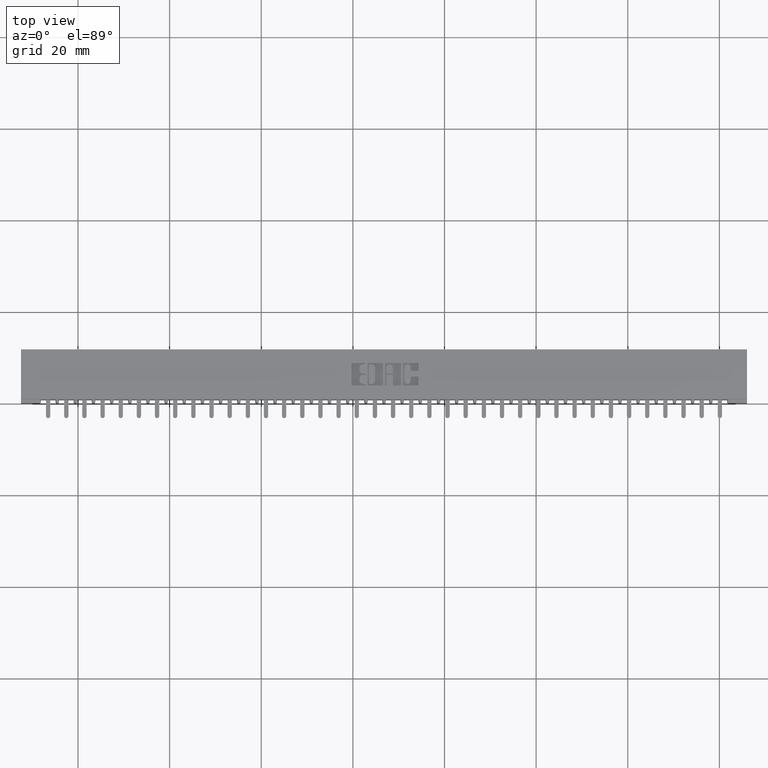
[diagram: clean part render]
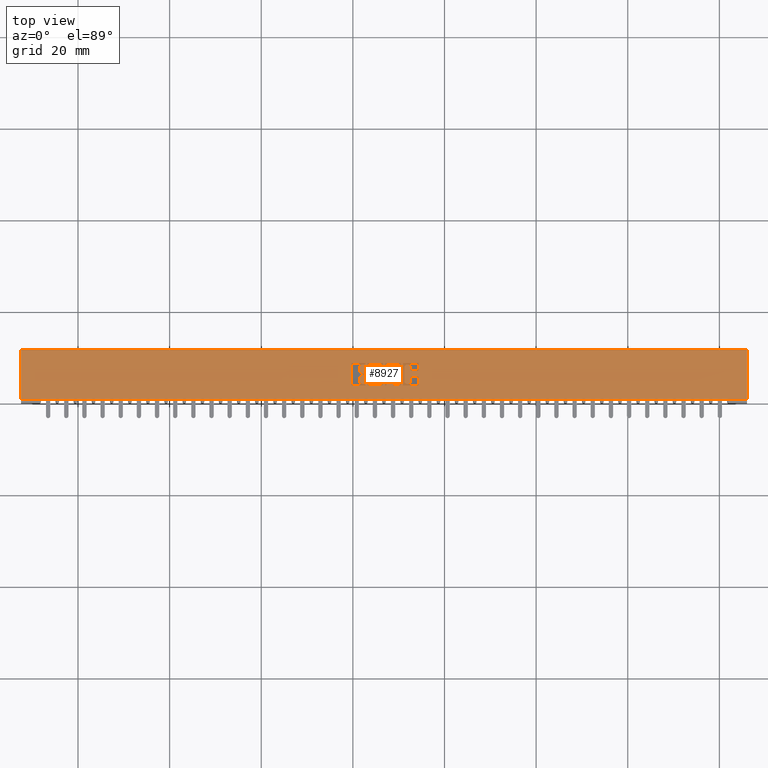
[diagram: same view with one face highlighted and labeled with its STEP entity id]
A machine part, top view. The second image highlights one B-rep face of the part: STEP entity #8927.
In plain terms, the highlighted planar face has unit normal (0, 0, -1).
Its self-contained STEP definition (entity closure, byte-faithful):
#13 = CARTESIAN_POINT ( 'NONE',  ( 3.654293827176977100, 0.2842718973050484800, 0.0000000000000000000 ) ) ;
#43 = AXIS2_PLACEMENT_3D ( 'NONE', #25607, #9057, #28361 ) ;
#83 = CARTESIAN_POINT ( 'NONE',  ( 0.2979999999999999900, 0.4600000000000000200, 0.0000000000000000000 ) ) ;
#95 = CARTESIAN_POINT ( 'NONE',  ( 3.439330649713646400, 0.0000000000000000000, 0.0000000000000000000 ) ) ;
#128 = CARTESIAN_POINT ( 'NONE',  ( -0.0000000000000000000, 0.2386290308573601200, 0.0000000000000000000 ) ) ;
#152 = CIRCLE ( 'NONE', #17811, 0.009815670203787768200 ) ;
#203 = ORIENTED_EDGE ( 'NONE', *, *, #29122, .F. ) ;
#246 = CARTESIAN_POINT ( 'NONE',  ( 3.136026440416114900, 0.1571589681657932500, 0.0000000000000000000 ) ) ;
#319 = ORIENTED_EDGE ( 'NONE', *, *, #11803, .F. ) ;
#320 = CARTESIAN_POINT ( 'NONE',  ( 3.644478156973165500, 0.3036578454992631700, 0.0000000000000000000 ) ) ;
#366 = VERTEX_POINT ( 'NONE', #5428 ) ;
#513 = EDGE_CURVE ( 'NONE', #27958, #25389, #24741, .T. ) ;
#530 = ORIENTED_EDGE ( 'NONE', *, *, #26776, .F. ) ;
#805 = VERTEX_POINT ( 'NONE', #15135 ) ;
#1259 = ORIENTED_EDGE ( 'NONE', *, *, #32869, .F. ) ;
#1565 = CARTESIAN_POINT ( 'NONE',  ( 3.398595618367861200, 0.1473432979619864700, 0.0000000000000000000 ) ) ;
#1583 = CARTESIAN_POINT ( 'NONE',  ( 3.654293827176966500, 0.2170345564089728700, 0.0000000000000000000 ) ) ;
#1587 = VECTOR ( 'NONE', #6218, 39.37007874015748100 ) ;
#1596 = EDGE_CURVE ( 'NONE', #7501, #7664, #32261, .T. ) ;
#1645 = CARTESIAN_POINT ( 'NONE',  ( 3.435404381632126900, 0.3436567020380099100, 0.0000000000000000000 ) ) ;
#1646 = CARTESIAN_POINT ( 'NONE',  ( 3.703862961706166200, 0.2744562271012367900, 0.0000000000000000000 ) ) ;
#1719 = VERTEX_POINT ( 'NONE', #2661 ) ;
#1734 = DIRECTION ( 'NONE',  ( -1.000000000000000000, -3.427012734660361200E-014, 0.0000000000000000000 ) ) ;
#1762 = CIRCLE ( 'NONE', #7080, 0.006870969142648706400 ) ;
#1779 = VERTEX_POINT ( 'NONE', #83 ) ;
#1850 = DIRECTION ( 'NONE',  ( -0.0000000000000000000, 0.0000000000000000000, 1.000000000000000000 ) ) ;
#1905 = DIRECTION ( 'NONE',  ( -0.0000000000000000000, 0.0000000000000000000, 1.000000000000000000 ) ) ;
#1944 = EDGE_CURVE ( 'NONE', #11505, #13034, #13874, .T. ) ;
#2002 = DIRECTION ( 'NONE',  ( 1.000000000000000000, 0.0000000000000000000, 0.0000000000000000000 ) ) ;
#2067 = CARTESIAN_POINT ( 'NONE',  ( 3.703862961706131600, 0.3338410318342142600, 0.0000000000000000000 ) ) ;
#2072 = VERTEX_POINT ( 'NONE', #14836 ) ;
#2093 = LINE ( 'NONE', #6021, #9536 ) ;
#2117 = CIRCLE ( 'NONE', #28331, 0.009815670203803066700 ) ;
#2128 = CARTESIAN_POINT ( 'NONE',  ( -0.0000000000000000000, 0.3436567020380099100, 0.0000000000000000000 ) ) ;
#2235 = ORIENTED_EDGE ( 'NONE', *, *, #21520, .T. ) ;
#2246 = CARTESIAN_POINT ( 'NONE',  ( 3.591964321382818100, 0.1873421540424563000, 0.0000000000000000000 ) ) ;
#2349 = CARTESIAN_POINT ( 'NONE',  ( 3.408411288571668900, 0.1571589681657932500, 0.0000000000000000000 ) ) ;
#2388 = EDGE_CURVE ( 'NONE', #9594, #26772, #19071, .T. ) ;
#2414 = EDGE_LOOP ( 'NONE', ( #17036, #3537, #33118, #34839, #15300, #19179, #10000, #30187, #7757, #29756, #14784, #21328, #24358, #27261, #530, #16114, #27822, #23382, #34327, #17779 ) ) ;
#2440 = LINE ( 'NONE', #29941, #9015 ) ;
#2451 = CIRCLE ( 'NONE', #23103, 0.009815670203795964800 ) ;
#2471 = CIRCLE ( 'NONE', #3011, 0.009815670203840221000 ) ;
#2472 = LINE ( 'NONE', #17260, #1587 ) ;
#2572 = CARTESIAN_POINT ( 'NONE',  ( -0.0000000000000000000, 0.3299147637527390400, 0.0000000000000000000 ) ) ;
#2625 = LINE ( 'NONE', #10867, #31134 ) ;
#2636 = VECTOR ( 'NONE', #11408, 39.37007874015748100 ) ;
#2642 = LINE ( 'NONE', #31042, #24795 ) ;
#2661 = CARTESIAN_POINT ( 'NONE',  ( 3.425588711428330300, 0.3338410318342134300, 0.0000000000000000000 ) ) ;
#2690 = VERTEX_POINT ( 'NONE', #27234 ) ;
#2713 = ORIENTED_EDGE ( 'NONE', *, *, #31708, .T. ) ;
#2756 = ORIENTED_EDGE ( 'NONE', *, *, #25009, .F. ) ;
#2797 = DIRECTION ( 'NONE',  ( 1.000000000000000000, 0.0000000000000000000, 0.0000000000000000000 ) ) ;
#2842 = DIRECTION ( 'NONE',  ( 1.000000000000000000, 0.0000000000000000000, 0.0000000000000000000 ) ) ;
#2891 = AXIS2_PLACEMENT_3D ( 'NONE', #31755, #15398, #34413 ) ;
#3011 = AXIS2_PLACEMENT_3D ( 'NONE', #2067, #7569, #17132 ) ;
#3021 = CIRCLE ( 'NONE', #13983, 0.03141014465218151100 ) ;
#3042 = VERTEX_POINT ( 'NONE', #27862 ) ;
#3085 = FACE_BOUND ( 'NONE', #2414, .T. ) ;
#3140 = VECTOR ( 'NONE', #7038, 39.37007874015748100 ) ;
#3374 = CARTESIAN_POINT ( 'NONE',  ( 3.145842110619937700, 0.3338410318342134300, 0.0000000000000000000 ) ) ;
#3402 = VECTOR ( 'NONE', #22274, 39.37007874015748100 ) ;
#3537 = ORIENTED_EDGE ( 'NONE', *, *, #27251, .F. ) ;
#3575 = CARTESIAN_POINT ( 'NONE',  ( 3.435404381632126900, 0.3338410318342134300, 0.0000000000000000000 ) ) ;
#3624 = AXIS2_PLACEMENT_3D ( 'NONE', #8265, #27599, #11088 ) ;
#3649 = VERTEX_POINT ( 'NONE', #33911 ) ;
#3668 = LINE ( 'NONE', #34863, #24075 ) ;
#3693 = CARTESIAN_POINT ( 'NONE',  ( 3.257004575677973100, 0.2455000000000236400, 0.0000000000000000000 ) ) ;
#3783 = CARTESIAN_POINT ( 'NONE',  ( 3.236637060005083600, 0.2523709691426871400, 0.0000000000000000000 ) ) ;
#3818 = DIRECTION ( 'NONE',  ( -0.0000000000000000000, 0.0000000000000000000, 1.000000000000000000 ) ) ;
#3870 = ORIENTED_EDGE ( 'NONE', *, *, #21756, .F. ) ;
#4215 = CARTESIAN_POINT ( 'NONE',  ( 3.439330649713646400, 0.1542142671046512500, 0.0000000000000000000 ) ) ;
#4389 = DIRECTION ( 'NONE',  ( 1.000000000000000000, 0.0000000000000000000, 0.0000000000000000000 ) ) ;
#4557 = CARTESIAN_POINT ( 'NONE',  ( -8.177847276074004000E-015, 0.2386290308572337800, 0.0000000000000000000 ) ) ;
#4640 = VERTEX_POINT ( 'NONE', #34008 ) ;
#4645 = ORIENTED_EDGE ( 'NONE', *, *, #29276, .T. ) ;
#4745 = ORIENTED_EDGE ( 'NONE', *, *, #9978, .F. ) ;
#4916 = DIRECTION ( 'NONE',  ( -0.0000000000000000000, 0.0000000000000000000, 1.000000000000000000 ) ) ;
#4929 = DIRECTION ( 'NONE',  ( 1.000000000000000000, 0.0000000000000000000, 0.0000000000000000000 ) ) ;
#4958 = DIRECTION ( 'NONE',  ( -1.000000000000000000, 0.0000000000000000000, -0.0000000000000000000 ) ) ;
#5000 = DIRECTION ( 'NONE',  ( 0.0000000000000000000, 1.000000000000000000, -0.0000000000000000000 ) ) ;
#5014 = CIRCLE ( 'NONE', #9520, 0.006870969142657995000 ) ;
#5146 = ORIENTED_EDGE ( 'NONE', *, *, #30194, .T. ) ;
#5153 = CARTESIAN_POINT ( 'NONE',  ( 3.257004575677999300, 0.3367857328953895400, 0.0000000000000000000 ) ) ;
#5268 = VECTOR ( 'NONE', #16933, 39.37007874015748100 ) ;
#5428 = CARTESIAN_POINT ( 'NONE',  ( 3.250133606415388100, 0.2386290308573601200, 0.0000000000000000000 ) ) ;
#5437 = VERTEX_POINT ( 'NONE', #320 ) ;
#5507 = VERTEX_POINT ( 'NONE', #12462 ) ;
#5508 = AXIS2_PLACEMENT_3D ( 'NONE', #25409, #19498, #2797 ) ;
#5525 = AXIS2_PLACEMENT_3D ( 'NONE', #10451, #29698, #13290 ) ;
#5664 = ORIENTED_EDGE ( 'NONE', *, *, #18684, .F. ) ;
#5695 = CARTESIAN_POINT ( 'NONE',  ( 3.644478156973178300, 0.1873421540424563000, 0.0000000000000000000 ) ) ;
#5738 = EDGE_CURVE ( 'NONE', #13861, #19964, #2625, .T. ) ;
#5957 = EDGE_CURVE ( 'NONE', #2690, #25633, #17861, .T. ) ;
#5961 = CARTESIAN_POINT ( 'NONE',  ( 3.236637060005124900, 0.3299147637527390400, 0.0000000000000000000 ) ) ;
#6021 = CARTESIAN_POINT ( 'NONE',  ( 3.136026440416114900, 0.0000000000000000000, 0.0000000000000000000 ) ) ;
#6063 = DIRECTION ( 'NONE',  ( -0.0000000000000000000, 0.0000000000000000000, 1.000000000000000000 ) ) ;
#6168 = VERTEX_POINT ( 'NONE', #17402 ) ;
#6192 = DIRECTION ( 'NONE',  ( 1.000000000000000000, 0.0000000000000000000, 0.0000000000000000000 ) ) ;
#6218 = DIRECTION ( 'NONE',  ( 0.0000000000000000000, -1.000000000000000000, 0.0000000000000000000 ) ) ;
#6254 = LINE ( 'NONE', #2572, #34530 ) ;
#6374 = CARTESIAN_POINT ( 'NONE',  ( 0.0000000000000000000, 0.2268502266127608600, 0.0000000000000000000 ) ) ;
#6392 = ORIENTED_EDGE ( 'NONE', *, *, #28606, .F. ) ;
#6402 = DIRECTION ( 'NONE',  ( 1.000000000000000000, 0.0000000000000000000, 0.0000000000000000000 ) ) ;
#6661 = CIRCLE ( 'NONE', #27034, 0.009815670203811809700 ) ;
#6702 = VERTEX_POINT ( 'NONE', #10717 ) ;
#6776 = CIRCLE ( 'NONE', #17336, 0.02625691779517339700 ) ;
#6854 = EDGE_CURVE ( 'NONE', #24229, #17188, #2117, .T. ) ;
#6927 = ORIENTED_EDGE ( 'NONE', *, *, #18198, .F. ) ;
#6964 = EDGE_LOOP ( 'NONE', ( #5146, #319, #19110, #3870, #15632, #35279, #29013, #34814, #33850, #2713, #2235, #18795, #8722, #26431 ) ) ;
#6994 = ORIENTED_EDGE ( 'NONE', *, *, #29228, .T. ) ;
#6995 = CARTESIAN_POINT ( 'NONE',  ( 3.591964321382818100, 0.3036578459575328700, 0.0000000000000000000 ) ) ;
#7034 = VERTEX_POINT ( 'NONE', #17583 ) ;
#7038 = DIRECTION ( 'NONE',  ( 0.0000000000000000000, 1.000000000000000000, -0.0000000000000000000 ) ) ;
#7080 = AXIS2_PLACEMENT_3D ( 'NONE', #28141, #11660, #30832 ) ;
#7108 = LINE ( 'NONE', #25100, #12829 ) ;
#7127 = EDGE_CURVE ( 'NONE', #13034, #26872, #9108, .T. ) ;
#7139 = EDGE_CURVE ( 'NONE', #13776, #1779, #22110, .T. ) ;
#7197 = CIRCLE ( 'NONE', #31676, 0.006870969142663458500 ) ;
#7228 = DIRECTION ( 'NONE',  ( -0.0000000000000000000, 0.0000000000000000000, 1.000000000000000000 ) ) ;
#7501 = VERTEX_POINT ( 'NONE', #12850 ) ;
#7569 = DIRECTION ( 'NONE',  ( -0.0000000000000000000, 0.0000000000000000000, 1.000000000000000000 ) ) ;
#7612 = CIRCLE ( 'NONE', #21364, 0.03141014465221592800 ) ;
#7656 = CARTESIAN_POINT ( 'NONE',  ( 0.2979999999999999900, 0.03100000000000000000, 0.0000000000000000000 ) ) ;
#7664 = VERTEX_POINT ( 'NONE', #5153 ) ;
#7757 = ORIENTED_EDGE ( 'NONE', *, *, #22891, .F. ) ;
#7823 = ORIENTED_EDGE ( 'NONE', *, *, #11631, .F. ) ;
#7901 = DIRECTION ( 'NONE',  ( -1.000000000000000000, 0.0000000000000000000, 0.0000000000000000000 ) ) ;
#8013 = DIRECTION ( 'NONE',  ( -0.0000000000000000000, 0.0000000000000000000, 1.000000000000000000 ) ) ;
#8123 = CARTESIAN_POINT ( 'NONE',  ( 3.618221239177991300, 0.3036578459575328700, 0.0000000000000000000 ) ) ;
#8157 = CARTESIAN_POINT ( 'NONE',  ( 3.145842110619921700, 0.1571589681657932500, 0.0000000000000000000 ) ) ;
#8265 = CARTESIAN_POINT ( 'NONE',  ( 3.588038053301299000, 0.3338410318342134300, 0.0000000000000000000 ) ) ;
#8313 = CARTESIAN_POINT ( 'NONE',  ( 3.703862961706133400, 0.1473432979619864700, 0.0000000000000000000 ) ) ;
#8371 = DIRECTION ( 'NONE',  ( -1.000000000000000000, 0.0000000000000000000, 0.0000000000000000000 ) ) ;
#8417 = VECTOR ( 'NONE', #25723, 39.37007874015748100 ) ;
#8438 = VERTEX_POINT ( 'NONE', #1565 ) ;
#8716 = VECTOR ( 'NONE', #30178, 39.37007874015748100 ) ;
#8722 = ORIENTED_EDGE ( 'NONE', *, *, #27657, .T. ) ;
#8799 = LINE ( 'NONE', #16581, #15324 ) ;
#8812 = ORIENTED_EDGE ( 'NONE', *, *, #11075, .F. ) ;
#8842 = VERTEX_POINT ( 'NONE', #24007 ) ;
#8887 = VERTEX_POINT ( 'NONE', #26765 ) ;
#8890 = CIRCLE ( 'NONE', #22487, 0.006870969142662365600 ) ;
#8927 = ADVANCED_FACE ( 'NONE', ( #3085, #18781, #25224, #31552, #32388 ), #18845, .F. ) ;
#9011 = EDGE_CURVE ( 'NONE', #20794, #27104, #21801, .T. ) ;
#9015 = VECTOR ( 'NONE', #7901, 39.37007874015748100 ) ;
#9057 = DIRECTION ( 'NONE',  ( -0.0000000000000000000, 0.0000000000000000000, 1.000000000000000000 ) ) ;
#9099 = CARTESIAN_POINT ( 'NONE',  ( 3.588038053301299000, 0.3436567020380543200, 0.0000000000000000000 ) ) ;
#9108 = CIRCLE ( 'NONE', #20342, 0.009815670203787221800 ) ;
#9125 = CARTESIAN_POINT ( 'NONE',  ( 0.2979999999999999900, 0.0000000000000000000, 0.0000000000000000000 ) ) ;
#9359 = CARTESIAN_POINT ( 'NONE',  ( 3.398595618367827400, 0.3338410318342132600, 0.0000000000000000000 ) ) ;
#9422 = EDGE_CURVE ( 'NONE', #13861, #25633, #22611, .T. ) ;
#9450 = CIRCLE ( 'NONE', #33569, 0.009815670203822736800 ) ;
#9520 = AXIS2_PLACEMENT_3D ( 'NONE', #20521, #3818, #23241 ) ;
#9533 = EDGE_CURVE ( 'NONE', #21488, #11505, #19166, .T. ) ;
#9536 = VECTOR ( 'NONE', #11774, 39.37007874015748100 ) ;
#9594 = VERTEX_POINT ( 'NONE', #2349 ) ;
#9670 = VECTOR ( 'NONE', #13711, 39.37007874015748100 ) ;
#9776 = VERTEX_POINT ( 'NONE', #246 ) ;
#9827 = VERTEX_POINT ( 'NONE', #25514 ) ;
#9978 = EDGE_CURVE ( 'NONE', #8438, #9594, #11782, .T. ) ;
#10000 = ORIENTED_EDGE ( 'NONE', *, *, #9422, .T. ) ;
#10059 = ORIENTED_EDGE ( 'NONE', *, *, #15121, .F. ) ;
#10091 = CARTESIAN_POINT ( 'NONE',  ( 3.644478156973165500, 0.0000000000000000000, 0.0000000000000000000 ) ) ;
#10162 = DIRECTION ( 'NONE',  ( -0.0000000000000000000, 0.0000000000000000000, 1.000000000000000000 ) ) ;
#10189 = DIRECTION ( 'NONE',  ( 1.000000000000000000, 0.0000000000000000000, 0.0000000000000000000 ) ) ;
#10210 = DIRECTION ( 'NONE',  ( -0.0000000000000000000, 0.0000000000000000000, 1.000000000000000000 ) ) ;
#10248 = DIRECTION ( 'NONE',  ( -0.0000000000000000000, 0.0000000000000000000, 1.000000000000000000 ) ) ;
#10365 = VERTEX_POINT ( 'NONE', #17275 ) ;
#10451 = CARTESIAN_POINT ( 'NONE',  ( 3.449146319917449700, 0.2288133606535489000, 0.0000000000000000000 ) ) ;
#10457 = ORIENTED_EDGE ( 'NONE', *, *, #23986, .T. ) ;
#10502 = CARTESIAN_POINT ( 'NONE',  ( -0.0000000000000000000, 0.1473432979619864700, 0.0000000000000000000 ) ) ;
#10511 = VECTOR ( 'NONE', #26058, 39.37007874015748100 ) ;
#10565 = VERTEX_POINT ( 'NONE', #12722 ) ;
#10586 = LINE ( 'NONE', #29008, #3140 ) ;
#10717 = CARTESIAN_POINT ( 'NONE',  ( 3.205226915352909200, 0.2985046191005230600, 0.0000000000000000000 ) ) ;
#10817 = VERTEX_POINT ( 'NONE', #32603 ) ;
#10824 = EDGE_CURVE ( 'NONE', #34898, #27791, #21680, .T. ) ;
#10867 = CARTESIAN_POINT ( 'NONE',  ( 3.591964321382818100, 0.0000000000000000000, 0.0000000000000000000 ) ) ;
#10884 = CIRCLE ( 'NONE', #16604, 0.009815670203797057700 ) ;
#10899 = CARTESIAN_POINT ( 'NONE',  ( 0.0000000000000000000, 0.2523709691426871400, 0.0000000000000000000 ) ) ;
#10936 = DIRECTION ( 'NONE',  ( 1.000000000000000000, 0.0000000000000000000, 0.0000000000000000000 ) ) ;
#10938 = VERTEX_POINT ( 'NONE', #19961 ) ;
#10975 = DIRECTION ( 'NONE',  ( 1.000000000000000000, 0.0000000000000000000, 0.0000000000000000000 ) ) ;
#11008 = LINE ( 'NONE', #24311, #23963 ) ;
#11075 = EDGE_CURVE ( 'NONE', #26772, #12098, #34724, .T. ) ;
#11088 = DIRECTION ( 'NONE',  ( 1.000000000000000000, 0.0000000000000000000, 0.0000000000000000000 ) ) ;
#11233 = VECTOR ( 'NONE', #21727, 39.37007874015748100 ) ;
#11266 = CIRCLE ( 'NONE', #25148, 0.009815670203796511200 ) ;
#11309 = ORIENTED_EDGE ( 'NONE', *, *, #18299, .F. ) ;
#11408 = DIRECTION ( 'NONE',  ( 1.000000000000000000, 0.0000000000000000000, 0.0000000000000000000 ) ) ;
#11505 = VERTEX_POINT ( 'NONE', #19410 ) ;
#11631 = EDGE_CURVE ( 'NONE', #22043, #32631, #9450, .T. ) ;
#11646 = VERTEX_POINT ( 'NONE', #17355 ) ;
#11660 = DIRECTION ( 'NONE',  ( -0.0000000000000000000, 0.0000000000000000000, 1.000000000000000000 ) ) ;
#11774 = DIRECTION ( 'NONE',  ( 0.0000000000000000000, -1.000000000000000000, 0.0000000000000000000 ) ) ;
#11782 = CIRCLE ( 'NONE', #26813, 0.009815670203806891800 ) ;
#11803 = EDGE_CURVE ( 'NONE', #27597, #15554, #18113, .T. ) ;
#11907 = LINE ( 'NONE', #10502, #33669 ) ;
#11966 = LINE ( 'NONE', #34274, #18442 ) ;
#12098 = VERTEX_POINT ( 'NONE', #30849 ) ;
#12167 = CARTESIAN_POINT ( 'NONE',  ( 3.713678631909971700, 0.0000000000000000000, 0.0000000000000000000 ) ) ;
#12193 = VECTOR ( 'NONE', #1734, 39.37007874015748100 ) ;
#12197 = DIRECTION ( 'NONE',  ( 1.000000000000000000, 0.0000000000000000000, 0.0000000000000000000 ) ) ;
#12237 = EDGE_CURVE ( 'NONE', #805, #27914, #5014, .T. ) ;
#12240 = EDGE_CURVE ( 'NONE', #25389, #11646, #25404, .T. ) ;
#12462 = CARTESIAN_POINT ( 'NONE',  ( 3.250133606535309900, 0.2523709691426871400, 0.0000000000000000000 ) ) ;
#12478 = DIRECTION ( 'NONE',  ( -0.0000000000000000000, 1.000000000000000000, -0.0000000000000000000 ) ) ;
#12502 = DIRECTION ( 'NONE',  ( 1.000000000000000000, 0.0000000000000000000, 0.0000000000000000000 ) ) ;
#12610 = CARTESIAN_POINT ( 'NONE',  ( 3.551229290037010200, 0.1571589681657841500, 0.0000000000000000000 ) ) ;
#12622 = DIRECTION ( 'NONE',  ( -0.0000000000000000000, 0.0000000000000000000, 1.000000000000000000 ) ) ;
#12722 = CARTESIAN_POINT ( 'NONE',  ( 3.145842110619917700, 0.1473432979619882800, 0.0000000000000000000 ) ) ;
#12829 = VECTOR ( 'NONE', #27841, 39.37007874015748100 ) ;
#12850 = CARTESIAN_POINT ( 'NONE',  ( 3.250133606535350800, 0.3299147637527390400, 0.0000000000000000000 ) ) ;
#12878 = ORIENTED_EDGE ( 'NONE', *, *, #9011, .F. ) ;
#12924 = CARTESIAN_POINT ( 'NONE',  ( 3.618221239177998000, 0.1873421540424563000, 0.0000000000000000000 ) ) ;
#13004 = CARTESIAN_POINT ( 'NONE',  ( 3.501660155507785500, 0.1473432979619878900, 0.0000000000000000000 ) ) ;
#13034 = VERTEX_POINT ( 'NONE', #18130 ) ;
#13118 = VECTOR ( 'NONE', #4929, 39.37007874015748100 ) ;
#13290 = DIRECTION ( 'NONE',  ( 1.000000000000000000, 0.0000000000000000000, 0.0000000000000000000 ) ) ;
#13388 = VERTEX_POINT ( 'NONE', #25202 ) ;
#13413 = ORIENTED_EDGE ( 'NONE', *, *, #1596, .F. ) ;
#13579 = CARTESIAN_POINT ( 'NONE',  ( 6.833999999999999600, 0.03100000000000000000, 0.0000000000000000000 ) ) ;
#13711 = DIRECTION ( 'NONE',  ( -1.000000000000000000, 0.0000000000000000000, 0.0000000000000000000 ) ) ;
#13776 = VERTEX_POINT ( 'NONE', #7656 ) ;
#13778 = CARTESIAN_POINT ( 'NONE',  ( 3.250133606535334800, 0.1542142671046512500, 0.0000000000000000000 ) ) ;
#13841 = DIRECTION ( 'NONE',  ( 1.000000000000000000, 0.0000000000000000000, 0.0000000000000000000 ) ) ;
#13861 = VERTEX_POINT ( 'NONE', #2246 ) ;
#13874 = LINE ( 'NONE', #25551, #27627 ) ;
#13883 = VERTEX_POINT ( 'NONE', #16381 ) ;
#13938 = EDGE_CURVE ( 'NONE', #8887, #23853, #6661, .T. ) ;
#13963 = LINE ( 'NONE', #2128, #13118 ) ;
#13983 = AXIS2_PLACEMENT_3D ( 'NONE', #24584, #8013, #27341 ) ;
#14002 = CARTESIAN_POINT ( 'NONE',  ( 0.0000000000000000000, 0.3436567020380543200, 0.0000000000000000000 ) ) ;
#14439 = ORIENTED_EDGE ( 'NONE', *, *, #35532, .F. ) ;
#14501 = DIRECTION ( 'NONE',  ( 1.000000000000000000, 0.0000000000000000000, 0.0000000000000000000 ) ) ;
#14507 = VECTOR ( 'NONE', #23959, 39.37007874015748100 ) ;
#14590 = LINE ( 'NONE', #13579, #28350 ) ;
#14601 = AXIS2_PLACEMENT_3D ( 'NONE', #12924, #32003, #15660 ) ;
#14630 = CARTESIAN_POINT ( 'NONE',  ( 3.578222383097458000, 0.3338410318342134300, 0.0000000000000000000 ) ) ;
#14651 = DIRECTION ( 'NONE',  ( 0.0000000000000000000, 1.000000000000000000, -0.0000000000000000000 ) ) ;
#14670 = CARTESIAN_POINT ( 'NONE',  ( 3.250133606535350800, 0.3436567020380360000, 0.0000000000000000000 ) ) ;
#14724 = EDGE_CURVE ( 'NONE', #27104, #4640, #22694, .T. ) ;
#14784 = ORIENTED_EDGE ( 'NONE', *, *, #7127, .F. ) ;
#14786 = DIRECTION ( 'NONE',  ( 1.000000000000000000, 0.0000000000000000000, 0.0000000000000000000 ) ) ;
#14836 = CARTESIAN_POINT ( 'NONE',  ( 3.449146319917449700, 0.2386290308573519600, 0.0000000000000000000 ) ) ;
#14929 = DIRECTION ( 'NONE',  ( 0.0000000000000000000, 1.000000000000000000, -0.0000000000000000000 ) ) ;
#14994 = VECTOR ( 'NONE', #14501, 39.37007874015748100 ) ;
#15099 = DIRECTION ( 'NONE',  ( -0.0000000000000000000, 0.0000000000000000000, 1.000000000000000000 ) ) ;
#15116 = ORIENTED_EDGE ( 'NONE', *, *, #17285, .F. ) ;
#15121 = EDGE_CURVE ( 'NONE', #32631, #9776, #2093, .T. ) ;
#15135 = CARTESIAN_POINT ( 'NONE',  ( 3.425588711428330300, 0.1542142671046512500, 0.0000000000000000000 ) ) ;
#15300 = ORIENTED_EDGE ( 'NONE', *, *, #22488, .T. ) ;
#15324 = VECTOR ( 'NONE', #32881, 39.37007874015748100 ) ;
#15351 = DIRECTION ( 'NONE',  ( 1.000000000000000000, 0.0000000000000000000, 0.0000000000000000000 ) ) ;
#15398 = DIRECTION ( 'NONE',  ( -0.0000000000000000000, 0.0000000000000000000, 1.000000000000000000 ) ) ;
#15429 = CARTESIAN_POINT ( 'NONE',  ( 3.551229290037011000, 0.3338410318342137100, 0.0000000000000000000 ) ) ;
#15554 = VERTEX_POINT ( 'NONE', #35209 ) ;
#15632 = ORIENTED_EDGE ( 'NONE', *, *, #16181, .T. ) ;
#15660 = DIRECTION ( 'NONE',  ( 1.000000000000000000, 0.0000000000000000000, 0.0000000000000000000 ) ) ;
#15770 = EDGE_CURVE ( 'NONE', #15913, #10365, #2472, .T. ) ;
#15913 = VERTEX_POINT ( 'NONE', #23292 ) ;
#15943 = CARTESIAN_POINT ( 'NONE',  ( 3.282770709963009500, 0.3436567020380543200, 0.0000000000000000000 ) ) ;
#16085 = CARTESIAN_POINT ( 'NONE',  ( 3.703862961706166200, 0.2842718973050419300, 0.0000000000000000000 ) ) ;
#16114 = ORIENTED_EDGE ( 'NONE', *, *, #21963, .F. ) ;
#16181 = EDGE_CURVE ( 'NONE', #10817, #17188, #2440, .T. ) ;
#16255 = CARTESIAN_POINT ( 'NONE',  ( 3.250133606415413800, 0.1473432979619890000, 0.0000000000000000000 ) ) ;
#16381 = CARTESIAN_POINT ( 'NONE',  ( 6.535999999999999600, 0.03100000000000000000, 0.0000000000000000000 ) ) ;
#16383 = CARTESIAN_POINT ( 'NONE',  ( 3.257004575677997500, 0.1542142671046512500, 0.0000000000000000000 ) ) ;
#16531 = DIRECTION ( 'NONE',  ( 1.000000000000000000, 0.0000000000000000000, 0.0000000000000000000 ) ) ;
#16581 = CARTESIAN_POINT ( 'NONE',  ( 3.561044960240805900, 0.0000000000000000000, 0.0000000000000000000 ) ) ;
#16604 = AXIS2_PLACEMENT_3D ( 'NONE', #26736, #10210, #29478 ) ;
#16688 = VERTEX_POINT ( 'NONE', #16255 ) ;
#16933 = DIRECTION ( 'NONE',  ( 1.000000000000000000, 0.0000000000000000000, 0.0000000000000000000 ) ) ;
#16961 = LINE ( 'NONE', #27452, #8716 ) ;
#17036 = ORIENTED_EDGE ( 'NONE', *, *, #513, .F. ) ;
#17132 = DIRECTION ( 'NONE',  ( 1.000000000000000000, 0.0000000000000000000, 0.0000000000000000000 ) ) ;
#17188 = VERTEX_POINT ( 'NONE', #13004 ) ;
#17259 = VERTEX_POINT ( 'NONE', #5961 ) ;
#17260 = CARTESIAN_POINT ( 'NONE',  ( 3.272955039759168500, 0.0000000000000000000, 0.0000000000000000000 ) ) ;
#17275 = CARTESIAN_POINT ( 'NONE',  ( 3.272955039759168500, 0.1571589681657932500, 0.0000000000000000000 ) ) ;
#17285 = EDGE_CURVE ( 'NONE', #1779, #21813, #29593, .T. ) ;
#17336 = AXIS2_PLACEMENT_3D ( 'NONE', #8123, #27441, #10936 ) ;
#17355 = CARTESIAN_POINT ( 'NONE',  ( 3.713678631909971700, 0.3338410318341981100, 0.0000000000000000000 ) ) ;
#17402 = CARTESIAN_POINT ( 'NONE',  ( 3.588038053301264800, 0.1473432979619864700, 0.0000000000000000000 ) ) ;
#17461 = CIRCLE ( 'NONE', #43, 0.03141014465215583000 ) ;
#17583 = CARTESIAN_POINT ( 'NONE',  ( 3.205226915352927800, 0.1924953808994937000, 0.0000000000000000000 ) ) ;
#17589 = VERTEX_POINT ( 'NONE', #21672 ) ;
#17674 = AXIS2_PLACEMENT_3D ( 'NONE', #18598, #1905, #21415 ) ;
#17676 = LINE ( 'NONE', #35641, #30530 ) ;
#17694 = ORIENTED_EDGE ( 'NONE', *, *, #19357, .F. ) ;
#17715 = LINE ( 'NONE', #95, #11233 ) ;
#17779 = ORIENTED_EDGE ( 'NONE', *, *, #12240, .F. ) ;
#17811 = AXIS2_PLACEMENT_3D ( 'NONE', #1583, #21100, #4389 ) ;
#17861 = LINE ( 'NONE', #33773, #10511 ) ;
#17949 = DIRECTION ( 'NONE',  ( 1.000000000000000000, 0.0000000000000000000, 0.0000000000000000000 ) ) ;
#18077 = VECTOR ( 'NONE', #14929, 39.37007874015748100 ) ;
#18113 = CIRCLE ( 'NONE', #31143, 0.009815670203795418300 ) ;
#18130 = CARTESIAN_POINT ( 'NONE',  ( 3.713678631909939700, 0.2170345564089737300, 0.0000000000000000000 ) ) ;
#18198 = EDGE_CURVE ( 'NONE', #7034, #18366, #11008, .T. ) ;
#18206 = DIRECTION ( 'NONE',  ( 1.000000000000000000, 0.0000000000000000000, 0.0000000000000000000 ) ) ;
#18299 = EDGE_CURVE ( 'NONE', #17259, #7501, #6254, .T. ) ;
#18366 = VERTEX_POINT ( 'NONE', #30472 ) ;
#18442 = VECTOR ( 'NONE', #12502, 39.37007874015748100 ) ;
#18517 = EDGE_CURVE ( 'NONE', #26872, #23088, #28703, .T. ) ;
#18547 = CARTESIAN_POINT ( 'NONE',  ( 3.588038053301264800, 0.1571589681657932500, 0.0000000000000000000 ) ) ;
#18598 = CARTESIAN_POINT ( 'NONE',  ( 3.282770709963009500, 0.3338410318342134300, 0.0000000000000000000 ) ) ;
#18684 = EDGE_CURVE ( 'NONE', #366, #21060, #24420, .T. ) ;
#18695 = DIRECTION ( 'NONE',  ( -0.0000000000000000000, 0.0000000000000000000, 1.000000000000000000 ) ) ;
#18781 = FACE_BOUND ( 'NONE', #35378, .T. ) ;
#18795 = ORIENTED_EDGE ( 'NONE', *, *, #12237, .F. ) ;
#18810 = CARTESIAN_POINT ( 'NONE',  ( 3.491844485303984500, 0.1571589681657911100, 0.0000000000000000000 ) ) ;
#18834 = EDGE_CURVE ( 'NONE', #6168, #21488, #11907, .T. ) ;
#18845 = PLANE ( 'NONE',  #19693 ) ;
#18927 = VERTEX_POINT ( 'NONE', #32727 ) ;
#19017 = CIRCLE ( 'NONE', #5525, 0.009815670203803066700 ) ;
#19071 = LINE ( 'NONE', #33300, #20838 ) ;
#19110 = ORIENTED_EDGE ( 'NONE', *, *, #29053, .T. ) ;
#19166 = CIRCLE ( 'NONE', #23820, 0.009815670203806345400 ) ;
#19179 = ORIENTED_EDGE ( 'NONE', *, *, #5738, .F. ) ;
#19346 = CARTESIAN_POINT ( 'NONE',  ( 3.561044960240805900, 0.3338410318342042700, 0.0000000000000000000 ) ) ;
#19357 = EDGE_CURVE ( 'NONE', #10565, #16688, #25664, .T. ) ;
#19410 = CARTESIAN_POINT ( 'NONE',  ( 3.713678631909939700, 0.1571589681657862800, 0.0000000000000000000 ) ) ;
#19498 = DIRECTION ( 'NONE',  ( -0.0000000000000000000, 0.0000000000000000000, 1.000000000000000000 ) ) ;
#19527 = CARTESIAN_POINT ( 'NONE',  ( 3.205226915352909200, 0.0000000000000000000, 0.0000000000000000000 ) ) ;
#19548 = DIRECTION ( 'NONE',  ( -0.0000000000000000000, 0.0000000000000000000, 1.000000000000000000 ) ) ;
#19609 = AXIS2_PLACEMENT_3D ( 'NONE', #29042, #12622, #31720 ) ;
#19637 = CIRCLE ( 'NONE', #31820, 0.009815670203805798900 ) ;
#19693 = AXIS2_PLACEMENT_3D ( 'NONE', #35071, #21646, #4958 ) ;
#19756 = CARTESIAN_POINT ( 'NONE',  ( -0.0000000000000000000, 0.1473432979619864700, 0.0000000000000000000 ) ) ;
#19914 = ORIENTED_EDGE ( 'NONE', *, *, #23096, .F. ) ;
#19961 = CARTESIAN_POINT ( 'NONE',  ( 3.561044960240805900, 0.1571589681657841500, 0.0000000000000000000 ) ) ;
#19964 = VERTEX_POINT ( 'NONE', #6995 ) ;
#20013 = EDGE_LOOP ( 'NONE', ( #19914, #4645, #15116, #34851 ) ) ;
#20041 = VECTOR ( 'NONE', #8371, 39.37007874015748100 ) ;
#20119 = LINE ( 'NONE', #19756, #5268 ) ;
#20253 = CIRCLE ( 'NONE', #28030, 0.009815670203806891800 ) ;
#20342 = AXIS2_PLACEMENT_3D ( 'NONE', #21567, #10248, #10189 ) ;
#20423 = CIRCLE ( 'NONE', #17674, 0.009815670203840767500 ) ;
#20445 = ORIENTED_EDGE ( 'NONE', *, *, #25715, .F. ) ;
#20521 = CARTESIAN_POINT ( 'NONE',  ( 3.432459680570986800, 0.1542142671046512500, 0.0000000000000000000 ) ) ;
#20615 = EDGE_CURVE ( 'NONE', #3649, #3042, #10884, .T. ) ;
#20794 = VERTEX_POINT ( 'NONE', #16383 ) ;
#20838 = VECTOR ( 'NONE', #14651, 39.37007874015748100 ) ;
#20907 = LINE ( 'NONE', #14002, #20041 ) ;
#21036 = ORIENTED_EDGE ( 'NONE', *, *, #15770, .F. ) ;
#21037 = CARTESIAN_POINT ( 'NONE',  ( -1.013135022034535400E-015, 0.1473432979619666600, 0.0000000000000000000 ) ) ;
#21040 = EDGE_CURVE ( 'NONE', #22336, #1719, #11266, .T. ) ;
#21060 = VERTEX_POINT ( 'NONE', #3693 ) ;
#21100 = DIRECTION ( 'NONE',  ( -0.0000000000000000000, 0.0000000000000000000, 1.000000000000000000 ) ) ;
#21186 = CARTESIAN_POINT ( 'NONE',  ( 3.713678631909971700, 0.2842718973050419300, 0.0000000000000000000 ) ) ;
#21260 = CARTESIAN_POINT ( 'NONE',  ( -1.915567620539870800E-014, 0.1610852362469270300, 0.0000000000000000000 ) ) ;
#21328 = ORIENTED_EDGE ( 'NONE', *, *, #1944, .F. ) ;
#21362 = DIRECTION ( 'NONE',  ( 1.000000000000000000, 0.0000000000000000000, 0.0000000000000000000 ) ) ;
#21364 = AXIS2_PLACEMENT_3D ( 'NONE', #22668, #6063, #25432 ) ;
#21415 = DIRECTION ( 'NONE',  ( 1.000000000000000000, 0.0000000000000000000, 0.0000000000000000000 ) ) ;
#21488 = VERTEX_POINT ( 'NONE', #8313 ) ;
#21520 = EDGE_CURVE ( 'NONE', #8842, #27914, #17715, .T. ) ;
#21567 = CARTESIAN_POINT ( 'NONE',  ( 3.703862961706152900, 0.2170345564089737300, 0.0000000000000000000 ) ) ;
#21608 = CARTESIAN_POINT ( 'NONE',  ( 3.703862961706133400, 0.1571589681657932500, 0.0000000000000000000 ) ) ;
#21646 = DIRECTION ( 'NONE',  ( 0.0000000000000000000, 0.0000000000000000000, -1.000000000000000000 ) ) ;
#21672 = CARTESIAN_POINT ( 'NONE',  ( 3.282770709962975700, 0.1473432979619864700, 0.0000000000000000000 ) ) ;
#21680 = CIRCLE ( 'NONE', #3624, 0.009815670203841313900 ) ;
#21727 = DIRECTION ( 'NONE',  ( 0.0000000000000000000, -1.000000000000000000, 0.0000000000000000000 ) ) ;
#21756 = EDGE_CURVE ( 'NONE', #10817, #10938, #2451, .T. ) ;
#21801 = CIRCLE ( 'NONE', #25185, 0.006870969142662365600 ) ;
#21813 = VERTEX_POINT ( 'NONE', #32056 ) ;
#21963 = EDGE_CURVE ( 'NONE', #27791, #9827, #17676, .T. ) ;
#22043 = VERTEX_POINT ( 'NONE', #30658 ) ;
#22110 = LINE ( 'NONE', #9125, #29374 ) ;
#22274 = DIRECTION ( 'NONE',  ( 0.0000000000000000000, 1.000000000000000000, -0.0000000000000000000 ) ) ;
#22336 = VERTEX_POINT ( 'NONE', #1645 ) ;
#22487 = AXIS2_PLACEMENT_3D ( 'NONE', #34921, #18695, #2002 ) ;
#22488 = EDGE_CURVE ( 'NONE', #5437, #19964, #6776, .T. ) ;
#22568 = CARTESIAN_POINT ( 'NONE',  ( 3.501660155507787800, 0.1571589681657911100, 0.0000000000000000000 ) ) ;
#22611 = CIRCLE ( 'NONE', #14601, 0.02625691779517995400 ) ;
#22668 = CARTESIAN_POINT ( 'NONE',  ( 3.236637060005124900, 0.2985046191005230600, 0.0000000000000000000 ) ) ;
#22684 = CARTESIAN_POINT ( 'NONE',  ( 0.0000000000000000000, 0.4600000000000000200, 0.0000000000000000000 ) ) ;
#22694 = LINE ( 'NONE', #21260, #14507 ) ;
#22801 = DIRECTION ( 'NONE',  ( -0.0000000000000000000, 0.0000000000000000000, 1.000000000000000000 ) ) ;
#22842 = EDGE_CURVE ( 'NONE', #13388, #27207, #23220, .T. ) ;
#22891 = EDGE_CURVE ( 'NONE', #23088, #2690, #152, .T. ) ;
#22968 = DIRECTION ( 'NONE',  ( -0.0000000000000000000, 1.000000000000000000, -0.0000000000000000000 ) ) ;
#23004 = DIRECTION ( 'NONE',  ( -0.0000000000000000000, 0.0000000000000000000, 1.000000000000000000 ) ) ;
#23088 = VERTEX_POINT ( 'NONE', #32530 ) ;
#23096 = EDGE_CURVE ( 'NONE', #13883, #13776, #14590, .T. ) ;
#23103 = AXIS2_PLACEMENT_3D ( 'NONE', #12610, #31710, #15351 ) ;
#23158 = VERTEX_POINT ( 'NONE', #30335 ) ;
#23220 = CIRCLE ( 'NONE', #2891, 0.03141014465217440600 ) ;
#23241 = DIRECTION ( 'NONE',  ( 1.000000000000000000, 0.0000000000000000000, 0.0000000000000000000 ) ) ;
#23292 = CARTESIAN_POINT ( 'NONE',  ( 3.272955039759168500, 0.3338410318342134300, 0.0000000000000000000 ) ) ;
#23382 = ORIENTED_EDGE ( 'NONE', *, *, #26298, .F. ) ;
#23421 = DIRECTION ( 'NONE',  ( 1.000000000000000000, 0.0000000000000000000, 0.0000000000000000000 ) ) ;
#23524 = DIRECTION ( 'NONE',  ( -0.0000000000000000000, 0.0000000000000000000, 1.000000000000000000 ) ) ;
#23667 = VERTEX_POINT ( 'NONE', #15943 ) ;
#23730 = EDGE_LOOP ( 'NONE', ( #8812, #27347, #4745, #203, #2756, #21036, #1259, #30080 ) ) ;
#23805 = CARTESIAN_POINT ( 'NONE',  ( 3.250133606535309900, 0.2455000000000236400, 0.0000000000000000000 ) ) ;
#23820 = AXIS2_PLACEMENT_3D ( 'NONE', #21608, #4916, #24322 ) ;
#23853 = VERTEX_POINT ( 'NONE', #30295 ) ;
#23868 = DIRECTION ( 'NONE',  ( 1.000000000000000000, 6.876017002796106200E-015, 0.0000000000000000000 ) ) ;
#23959 = DIRECTION ( 'NONE',  ( -1.000000000000000000, -1.189163988687022500E-013, 0.0000000000000000000 ) ) ;
#23963 = VECTOR ( 'NONE', #35016, 39.37007874015748100 ) ;
#23986 = EDGE_CURVE ( 'NONE', #17259, #6702, #7612, .T. ) ;
#24007 = CARTESIAN_POINT ( 'NONE',  ( 3.439330649713646400, 0.2288133606535489000, 0.0000000000000000000 ) ) ;
#24075 = VECTOR ( 'NONE', #29650, 39.37007874015748100 ) ;
#24185 = EDGE_CURVE ( 'NONE', #16688, #20794, #8890, .T. ) ;
#24229 = VERTEX_POINT ( 'NONE', #18810 ) ;
#24288 = ORIENTED_EDGE ( 'NONE', *, *, #28558, .F. ) ;
#24311 = CARTESIAN_POINT ( 'NONE',  ( 3.205226915352927800, 0.0000000000000000000, 0.0000000000000000000 ) ) ;
#24322 = DIRECTION ( 'NONE',  ( 1.000000000000000000, 0.0000000000000000000, 0.0000000000000000000 ) ) ;
#24358 = ORIENTED_EDGE ( 'NONE', *, *, #9533, .F. ) ;
#24382 = LINE ( 'NONE', #10899, #9670 ) ;
#24404 = VECTOR ( 'NONE', #32027, 39.37007874015748100 ) ;
#24420 = CIRCLE ( 'NONE', #19609, 0.006870969142663458500 ) ;
#24584 = CARTESIAN_POINT ( 'NONE',  ( 3.236637060005109300, 0.1924953808994937000, 0.0000000000000000000 ) ) ;
#24741 = CIRCLE ( 'NONE', #27271, 0.009815670203805252500 ) ;
#24795 = VECTOR ( 'NONE', #22968, 39.37007874015748100 ) ;
#24986 = DIRECTION ( 'NONE',  ( 0.0000000000000000000, 1.000000000000000000, -0.0000000000000000000 ) ) ;
#25009 = EDGE_CURVE ( 'NONE', #10365, #17589, #29922, .T. ) ;
#25100 = CARTESIAN_POINT ( 'NONE',  ( 3.425588711428330300, 0.0000000000000000000, 0.0000000000000000000 ) ) ;
#25148 = AXIS2_PLACEMENT_3D ( 'NONE', #3575, #23004, #6402 ) ;
#25185 = AXIS2_PLACEMENT_3D ( 'NONE', #13778, #32821, #16531 ) ;
#25202 = CARTESIAN_POINT ( 'NONE',  ( 3.205226915352909200, 0.2837811137948616500, 0.0000000000000000000 ) ) ;
#25224 = FACE_OUTER_BOUND ( 'NONE', #20013, .T. ) ;
#25231 = AXIS2_PLACEMENT_3D ( 'NONE', #31472, #27231, #17949 ) ;
#25389 = VERTEX_POINT ( 'NONE', #21186 ) ;
#25404 = LINE ( 'NONE', #12167, #18077 ) ;
#25409 = CARTESIAN_POINT ( 'NONE',  ( 3.282770709962975700, 0.1571589681657932500, 0.0000000000000000000 ) ) ;
#25432 = DIRECTION ( 'NONE',  ( 1.000000000000000000, 0.0000000000000000000, 0.0000000000000000000 ) ) ;
#25514 = CARTESIAN_POINT ( 'NONE',  ( 3.578222383097458000, 0.1571589681657932500, 0.0000000000000000000 ) ) ;
#25524 = LINE ( 'NONE', #19527, #3402 ) ;
#25551 = CARTESIAN_POINT ( 'NONE',  ( 3.713678631909939700, 0.0000000000000000000, 0.0000000000000000000 ) ) ;
#25607 = CARTESIAN_POINT ( 'NONE',  ( 3.236637060005083600, 0.2072188862052038400, 0.0000000000000000000 ) ) ;
#25633 = VERTEX_POINT ( 'NONE', #5695 ) ;
#25664 = LINE ( 'NONE', #21037, #30322 ) ;
#25715 = EDGE_CURVE ( 'NONE', #9776, #10565, #19637, .T. ) ;
#25723 = DIRECTION ( 'NONE',  ( -1.000000000000000000, 0.0000000000000000000, 0.0000000000000000000 ) ) ;
#25815 = CARTESIAN_POINT ( 'NONE',  ( 3.136026440416114900, 0.3338410318342134300, 0.0000000000000000000 ) ) ;
#26058 = DIRECTION ( 'NONE',  ( 0.0000000000000000000, -1.000000000000000000, 0.0000000000000000000 ) ) ;
#26246 = EDGE_CURVE ( 'NONE', #7034, #4640, #3021, .T. ) ;
#26298 = EDGE_CURVE ( 'NONE', #18927, #34898, #16961, .T. ) ;
#26361 = EDGE_CURVE ( 'NONE', #12098, #23667, #20907, .T. ) ;
#26431 = ORIENTED_EDGE ( 'NONE', *, *, #21040, .F. ) ;
#26552 = DIRECTION ( 'NONE',  ( 1.000000000000000000, 0.0000000000000000000, 0.0000000000000000000 ) ) ;
#26690 = CARTESIAN_POINT ( 'NONE',  ( 3.398595618367861200, 0.1571589681657932500, 0.0000000000000000000 ) ) ;
#26736 = CARTESIAN_POINT ( 'NONE',  ( 3.482028815100187500, 0.2288133606535560900, 0.0000000000000000000 ) ) ;
#26738 = ORIENTED_EDGE ( 'NONE', *, *, #14724, .F. ) ;
#26765 = CARTESIAN_POINT ( 'NONE',  ( 3.644478156973165500, 0.2842718973050484800, 0.0000000000000000000 ) ) ;
#26772 = VERTEX_POINT ( 'NONE', #34532 ) ;
#26776 = EDGE_CURVE ( 'NONE', #9827, #6168, #20253, .T. ) ;
#26813 = AXIS2_PLACEMENT_3D ( 'NONE', #26690, #10162, #29439 ) ;
#26818 = LINE ( 'NONE', #4557, #12193 ) ;
#26872 = VERTEX_POINT ( 'NONE', #27189 ) ;
#27034 = AXIS2_PLACEMENT_3D ( 'NONE', #13, #19548, #2842 ) ;
#27104 = VERTEX_POINT ( 'NONE', #33584 ) ;
#27147 = VERTEX_POINT ( 'NONE', #14670 ) ;
#27189 = CARTESIAN_POINT ( 'NONE',  ( 3.703862961706156000, 0.2268502266127608600, 0.0000000000000000000 ) ) ;
#27207 = VERTEX_POINT ( 'NONE', #3783 ) ;
#27231 = DIRECTION ( 'NONE',  ( -0.0000000000000000000, 0.0000000000000000000, 1.000000000000000000 ) ) ;
#27234 = CARTESIAN_POINT ( 'NONE',  ( 3.644478156973178300, 0.2170345564089719800, 0.0000000000000000000 ) ) ;
#27251 = EDGE_CURVE ( 'NONE', #23853, #27958, #11966, .T. ) ;
#27261 = ORIENTED_EDGE ( 'NONE', *, *, #18834, .F. ) ;
#27271 = AXIS2_PLACEMENT_3D ( 'NONE', #16085, #15099, #14786 ) ;
#27341 = DIRECTION ( 'NONE',  ( 1.000000000000000000, 0.0000000000000000000, 0.0000000000000000000 ) ) ;
#27347 = ORIENTED_EDGE ( 'NONE', *, *, #2388, .F. ) ;
#27390 = DIRECTION ( 'NONE',  ( -1.000000000000000000, -0.0000000000000000000, -0.0000000000000000000 ) ) ;
#27441 = DIRECTION ( 'NONE',  ( -0.0000000000000000000, 0.0000000000000000000, 1.000000000000000000 ) ) ;
#27452 = CARTESIAN_POINT ( 'NONE',  ( 0.0000000000000000000, 0.3436567020380543200, 0.0000000000000000000 ) ) ;
#27485 = DIRECTION ( 'NONE',  ( -0.0000000000000000000, 0.0000000000000000000, 1.000000000000000000 ) ) ;
#27597 = VERTEX_POINT ( 'NONE', #19346 ) ;
#27599 = DIRECTION ( 'NONE',  ( -0.0000000000000000000, 0.0000000000000000000, 1.000000000000000000 ) ) ;
#27613 = DIRECTION ( 'NONE',  ( 0.0000000000000000000, -1.000000000000000000, 0.0000000000000000000 ) ) ;
#27627 = VECTOR ( 'NONE', #5000, 39.37007874015748100 ) ;
#27657 = EDGE_CURVE ( 'NONE', #805, #1719, #7108, .T. ) ;
#27791 = VERTEX_POINT ( 'NONE', #14630 ) ;
#27822 = ORIENTED_EDGE ( 'NONE', *, *, #10824, .F. ) ;
#27841 = DIRECTION ( 'NONE',  ( 0.0000000000000000000, 1.000000000000000000, -0.0000000000000000000 ) ) ;
#27862 = CARTESIAN_POINT ( 'NONE',  ( 3.482028815100187500, 0.2386290308573531000, 0.0000000000000000000 ) ) ;
#27914 = VERTEX_POINT ( 'NONE', #4215 ) ;
#27915 = EDGE_CURVE ( 'NONE', #24229, #3649, #10586, .T. ) ;
#27958 = VERTEX_POINT ( 'NONE', #1646 ) ;
#27980 = EDGE_CURVE ( 'NONE', #5437, #8887, #29935, .T. ) ;
#28030 = AXIS2_PLACEMENT_3D ( 'NONE', #18547, #1850, #21362 ) ;
#28141 = CARTESIAN_POINT ( 'NONE',  ( 3.250133606535350800, 0.3367857328953895400, 0.0000000000000000000 ) ) ;
#28190 = ORIENTED_EDGE ( 'NONE', *, *, #22842, .T. ) ;
#28331 = AXIS2_PLACEMENT_3D ( 'NONE', #22568, #23524, #23421 ) ;
#28350 = VECTOR ( 'NONE', #27390, 39.37007874015748100 ) ;
#28361 = DIRECTION ( 'NONE',  ( 1.000000000000000000, 0.0000000000000000000, 0.0000000000000000000 ) ) ;
#28558 = EDGE_CURVE ( 'NONE', #23158, #366, #31966, .T. ) ;
#28606 = EDGE_CURVE ( 'NONE', #7664, #27147, #1762, .T. ) ;
#28642 = DIRECTION ( 'NONE',  ( -0.0000000000000000000, 0.0000000000000000000, 1.000000000000000000 ) ) ;
#28703 = LINE ( 'NONE', #6374, #8417 ) ;
#29008 = CARTESIAN_POINT ( 'NONE',  ( 3.491844485303984500, 0.0000000000000000000, 0.0000000000000000000 ) ) ;
#29011 = EDGE_CURVE ( 'NONE', #5507, #27207, #24382, .T. ) ;
#29013 = ORIENTED_EDGE ( 'NONE', *, *, #27915, .T. ) ;
#29042 = CARTESIAN_POINT ( 'NONE',  ( 3.250133606535309900, 0.2455000000000236400, 0.0000000000000000000 ) ) ;
#29053 = EDGE_CURVE ( 'NONE', #27597, #10938, #8799, .T. ) ;
#29122 = EDGE_CURVE ( 'NONE', #17589, #8438, #20119, .T. ) ;
#29228 = EDGE_CURVE ( 'NONE', #23158, #18366, #17461, .T. ) ;
#29276 = EDGE_CURVE ( 'NONE', #13883, #21813, #2642, .T. ) ;
#29374 = VECTOR ( 'NONE', #12478, 39.37007874015748100 ) ;
#29439 = DIRECTION ( 'NONE',  ( 1.000000000000000000, 0.0000000000000000000, 0.0000000000000000000 ) ) ;
#29478 = DIRECTION ( 'NONE',  ( 1.000000000000000000, 0.0000000000000000000, 0.0000000000000000000 ) ) ;
#29593 = LINE ( 'NONE', #22684, #14994 ) ;
#29650 = DIRECTION ( 'NONE',  ( -1.000000000000000000, 0.0000000000000000000, 0.0000000000000000000 ) ) ;
#29698 = DIRECTION ( 'NONE',  ( -0.0000000000000000000, 0.0000000000000000000, 1.000000000000000000 ) ) ;
#29708 = ORIENTED_EDGE ( 'NONE', *, *, #26246, .T. ) ;
#29753 = DIRECTION ( 'NONE',  ( 1.000000000000000000, 0.0000000000000000000, 0.0000000000000000000 ) ) ;
#29756 = ORIENTED_EDGE ( 'NONE', *, *, #18517, .F. ) ;
#29850 = ORIENTED_EDGE ( 'NONE', *, *, #33687, .F. ) ;
#29922 = CIRCLE ( 'NONE', #5508, 0.009815670203806891800 ) ;
#29935 = LINE ( 'NONE', #10091, #24404 ) ;
#29941 = CARTESIAN_POINT ( 'NONE',  ( 0.0000000000000000000, 0.1473432979619878900, 0.0000000000000000000 ) ) ;
#30080 = ORIENTED_EDGE ( 'NONE', *, *, #26361, .F. ) ;
#30150 = ORIENTED_EDGE ( 'NONE', *, *, #29011, .F. ) ;
#30178 = DIRECTION ( 'NONE',  ( -1.000000000000000000, 0.0000000000000000000, 0.0000000000000000000 ) ) ;
#30187 = ORIENTED_EDGE ( 'NONE', *, *, #5957, .F. ) ;
#30194 = EDGE_CURVE ( 'NONE', #22336, #15554, #13963, .T. ) ;
#30295 = CARTESIAN_POINT ( 'NONE',  ( 3.654293827176977100, 0.2744562271012369000, 0.0000000000000000000 ) ) ;
#30322 = VECTOR ( 'NONE', #23868, 39.37007874015748100 ) ;
#30335 = CARTESIAN_POINT ( 'NONE',  ( 3.236637060005083600, 0.2386290308573601200, 0.0000000000000000000 ) ) ;
#30472 = CARTESIAN_POINT ( 'NONE',  ( 3.205226915352927800, 0.2072188862052038400, 0.0000000000000000000 ) ) ;
#30530 = VECTOR ( 'NONE', #27613, 39.37007874015748100 ) ;
#30658 = CARTESIAN_POINT ( 'NONE',  ( 3.145842110619937700, 0.3436567020380360000, 0.0000000000000000000 ) ) ;
#30832 = DIRECTION ( 'NONE',  ( 1.000000000000000000, 0.0000000000000000000, 0.0000000000000000000 ) ) ;
#30849 = CARTESIAN_POINT ( 'NONE',  ( 3.398595618367895800, 0.3436567020380543200, 0.0000000000000000000 ) ) ;
#31042 = CARTESIAN_POINT ( 'NONE',  ( 6.535999999999999600, 0.0000000000000000000, 0.0000000000000000000 ) ) ;
#31134 = VECTOR ( 'NONE', #24986, 39.37007874015748100 ) ;
#31143 = AXIS2_PLACEMENT_3D ( 'NONE', #15429, #34440, #18206 ) ;
#31472 = CARTESIAN_POINT ( 'NONE',  ( 3.250133606535350800, 0.3367857328953895400, 0.0000000000000000000 ) ) ;
#31552 = FACE_BOUND ( 'NONE', #23730, .T. ) ;
#31676 = AXIS2_PLACEMENT_3D ( 'NONE', #23805, #7228, #26552 ) ;
#31708 = EDGE_CURVE ( 'NONE', #2072, #8842, #19017, .T. ) ;
#31710 = DIRECTION ( 'NONE',  ( -0.0000000000000000000, 0.0000000000000000000, 1.000000000000000000 ) ) ;
#31720 = DIRECTION ( 'NONE',  ( 1.000000000000000000, 0.0000000000000000000, 0.0000000000000000000 ) ) ;
#31755 = CARTESIAN_POINT ( 'NONE',  ( 3.236637060005083600, 0.2837811137948616500, 0.0000000000000000000 ) ) ;
#31820 = AXIS2_PLACEMENT_3D ( 'NONE', #8157, #27485, #10975 ) ;
#31966 = LINE ( 'NONE', #128, #2636 ) ;
#32003 = DIRECTION ( 'NONE',  ( -0.0000000000000000000, 0.0000000000000000000, 1.000000000000000000 ) ) ;
#32027 = DIRECTION ( 'NONE',  ( 0.0000000000000000000, -1.000000000000000000, 0.0000000000000000000 ) ) ;
#32056 = CARTESIAN_POINT ( 'NONE',  ( 6.535999999999999600, 0.4600000000000000200, 0.0000000000000000000 ) ) ;
#32261 = CIRCLE ( 'NONE', #25231, 0.006870969142648706400 ) ;
#32388 = FACE_BOUND ( 'NONE', #6964, .T. ) ;
#32530 = CARTESIAN_POINT ( 'NONE',  ( 3.654293827176966500, 0.2268502266127608600, 0.0000000000000000000 ) ) ;
#32603 = CARTESIAN_POINT ( 'NONE',  ( 3.551229290037010200, 0.1473432979619878900, 0.0000000000000000000 ) ) ;
#32631 = VERTEX_POINT ( 'NONE', #25815 ) ;
#32727 = CARTESIAN_POINT ( 'NONE',  ( 3.703862961706168000, 0.3436567020380543200, 0.0000000000000000000 ) ) ;
#32821 = DIRECTION ( 'NONE',  ( -0.0000000000000000000, 0.0000000000000000000, 1.000000000000000000 ) ) ;
#32869 = EDGE_CURVE ( 'NONE', #23667, #15913, #20423, .T. ) ;
#32881 = DIRECTION ( 'NONE',  ( 0.0000000000000000000, -1.000000000000000000, 0.0000000000000000000 ) ) ;
#33103 = AXIS2_PLACEMENT_3D ( 'NONE', #9359, #28642, #12197 ) ;
#33118 = ORIENTED_EDGE ( 'NONE', *, *, #13938, .F. ) ;
#33300 = CARTESIAN_POINT ( 'NONE',  ( 3.408411288571668900, 0.0000000000000000000, 0.0000000000000000000 ) ) ;
#33470 = EDGE_CURVE ( 'NONE', #3042, #2072, #26818, .T. ) ;
#33569 = AXIS2_PLACEMENT_3D ( 'NONE', #3374, #22801, #6192 ) ;
#33584 = CARTESIAN_POINT ( 'NONE',  ( 3.250133606415413800, 0.1610852362473135000, 0.0000000000000000000 ) ) ;
#33669 = VECTOR ( 'NONE', #29753, 39.37007874015748100 ) ;
#33687 = EDGE_CURVE ( 'NONE', #13388, #6702, #25524, .T. ) ;
#33773 = CARTESIAN_POINT ( 'NONE',  ( 3.644478156973178300, 0.0000000000000000000, 0.0000000000000000000 ) ) ;
#33850 = ORIENTED_EDGE ( 'NONE', *, *, #33470, .T. ) ;
#33911 = CARTESIAN_POINT ( 'NONE',  ( 3.491844485303984500, 0.2288133606535467400, 0.0000000000000000000 ) ) ;
#34008 = CARTESIAN_POINT ( 'NONE',  ( 3.236637060005109300, 0.1610852362473119100, 0.0000000000000000000 ) ) ;
#34146 = EDGE_CURVE ( 'NONE', #11646, #18927, #2471, .T. ) ;
#34274 = CARTESIAN_POINT ( 'NONE',  ( -0.0000000000000000000, 0.2744562271012369000, 0.0000000000000000000 ) ) ;
#34327 = ORIENTED_EDGE ( 'NONE', *, *, #34146, .F. ) ;
#34413 = DIRECTION ( 'NONE',  ( 1.000000000000000000, 0.0000000000000000000, 0.0000000000000000000 ) ) ;
#34440 = DIRECTION ( 'NONE',  ( -0.0000000000000000000, 0.0000000000000000000, 1.000000000000000000 ) ) ;
#34530 = VECTOR ( 'NONE', #13841, 39.37007874015748100 ) ;
#34532 = CARTESIAN_POINT ( 'NONE',  ( 3.408411288571668900, 0.3338410318342134300, 0.0000000000000000000 ) ) ;
#34704 = ORIENTED_EDGE ( 'NONE', *, *, #35623, .F. ) ;
#34724 = CIRCLE ( 'NONE', #33103, 0.009815670203841313900 ) ;
#34814 = ORIENTED_EDGE ( 'NONE', *, *, #20615, .T. ) ;
#34839 = ORIENTED_EDGE ( 'NONE', *, *, #27980, .F. ) ;
#34851 = ORIENTED_EDGE ( 'NONE', *, *, #7139, .F. ) ;
#34863 = CARTESIAN_POINT ( 'NONE',  ( 0.0000000000000000000, 0.3436567020380360000, 0.0000000000000000000 ) ) ;
#34898 = VERTEX_POINT ( 'NONE', #9099 ) ;
#34921 = CARTESIAN_POINT ( 'NONE',  ( 3.250133606535334800, 0.1542142671046512500, 0.0000000000000000000 ) ) ;
#35016 = DIRECTION ( 'NONE',  ( 0.0000000000000000000, 1.000000000000000000, -0.0000000000000000000 ) ) ;
#35071 = CARTESIAN_POINT ( 'NONE',  ( 0.0000000000000000000, 0.4600000000000000200, 0.0000000000000000000 ) ) ;
#35209 = CARTESIAN_POINT ( 'NONE',  ( 3.551229290037013300, 0.3436567020380099100, 0.0000000000000000000 ) ) ;
#35279 = ORIENTED_EDGE ( 'NONE', *, *, #6854, .F. ) ;
#35378 = EDGE_LOOP ( 'NONE', ( #10457, #29850, #28190, #30150, #14439, #5664, #24288, #6994, #6927, #29708, #26738, #12878, #35404, #17694, #20445, #10059, #7823, #34704, #6392, #13413, #11309 ) ) ;
#35404 = ORIENTED_EDGE ( 'NONE', *, *, #24185, .F. ) ;
#35532 = EDGE_CURVE ( 'NONE', #21060, #5507, #7197, .T. ) ;
#35623 = EDGE_CURVE ( 'NONE', #27147, #22043, #3668, .T. ) ;
#35641 = CARTESIAN_POINT ( 'NONE',  ( 3.578222383097458000, 0.0000000000000000000, 0.0000000000000000000 ) ) ;